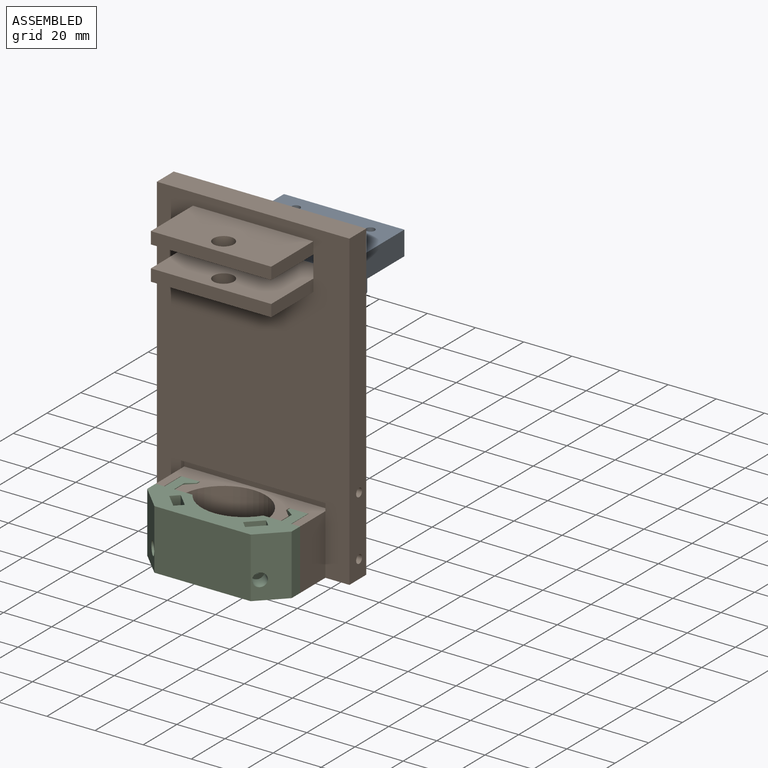
[diagram: assembled view]
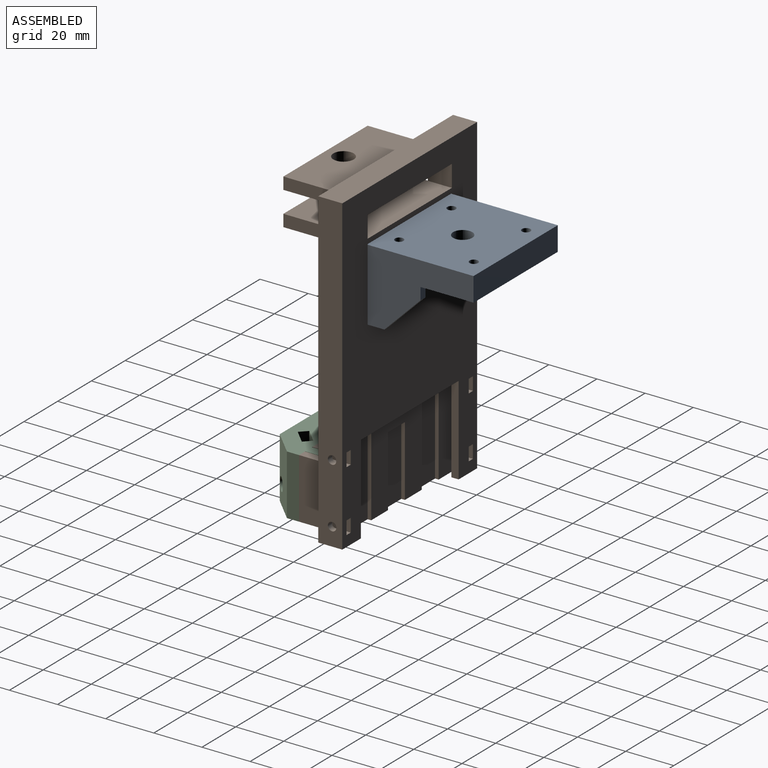
[diagram: assembled view, second angle]
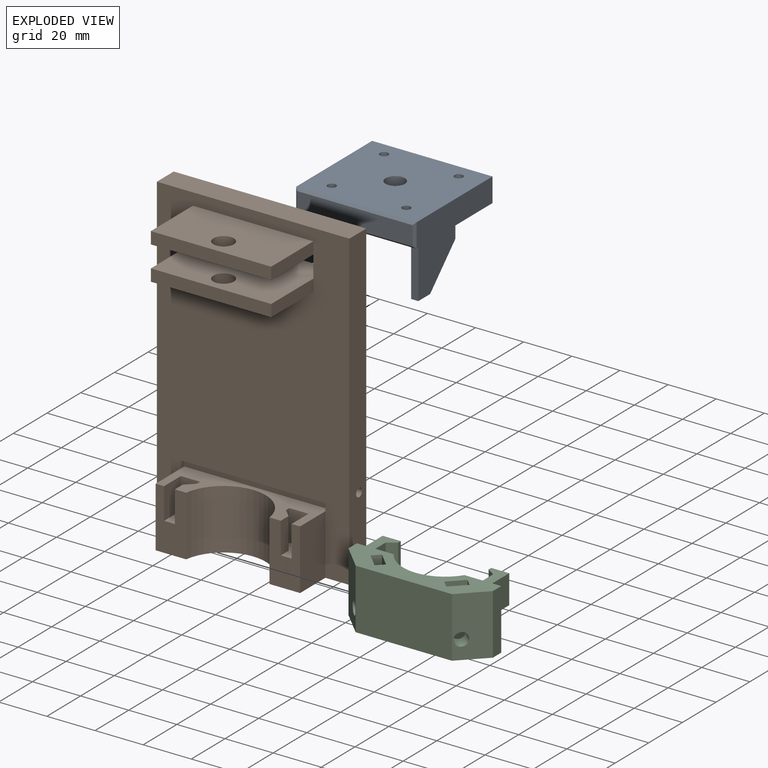
[diagram: exploded view]
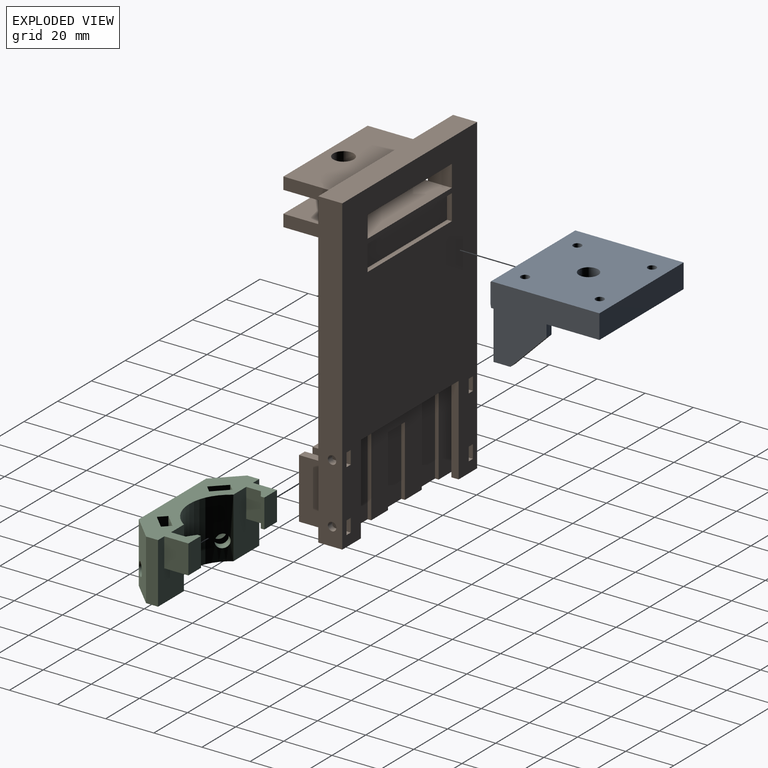
[diagram: exploded view, second angle]
ASSEMBLY  parts=3 mates=2
PART A: 27 faces, bbox 50x46x30 mm
  f0: plane 50x45mm, normal (0,0,1), area 2161.3mm2, adj f2,f4,f5,f6,f7,f8,f9,f10
  f1: plane 50x45mm, normal (0,0,-1), area 1664mm2, adj f2,f4,f5,f7,f8,f9,f10,f11
  f2: plane 45x30mm, normal (-1,0,0), area 777.5mm2, adj f0,f1,f5,f11,f13,f14,f19,f24
  f3: plane 48x8mm, normal (0,-1,0), area 384mm2, adj f23,f24,f25,f26
  f4: plane 45x30mm, normal (1,0,0), area 777.5mm2, adj f0,f1,f5,f15,f16,f18,f20,f25
  f5: plane 50x10mm, normal (0,1,0), area 500mm2, adj f0,f1,f2,f4
  f6: cylinder r=4mm len=8mm, axis (0,0,-1), area 175.9mm2, adj f0,f22
  f7: cylinder r=1.75mm len=10mm, axis (0,0,-1), area 110mm2, adj f0,f1
  f8: cylinder r=1.75mm len=10mm, axis (0,0,-1), area 110mm2, adj f0,f1
  f9: cylinder r=1.75mm len=10mm, axis (0,0,-1), area 110mm2, adj f0,f1
  f10: cylinder r=1.75mm len=10mm, axis (0,0,-1), area 110mm2, adj f0,f1
  f11: plane 20x3mm, normal (0,-1,0), area 60mm2, adj f1,f2,f12,f14
  f12: plane 22x20mm, normal (1,0,0), area 327.5mm2, adj f1,f11,f13,f14,f19
  f13: plane 5x3mm, normal (0,1,0), area 15mm2, adj f1,f2,f12,f19
  f14: plane 7x3mm, normal (0,0,-1), area 21mm2, adj f2,f11,f12,f19
  f15: plane 20x3mm, normal (0,-1,0), area 60mm2, adj f1,f4,f17,f18
  f16: plane 5x3mm, normal (0,1,0), area 15mm2, adj f1,f4,f17,f20
  f17: plane 22x20mm, normal (-1,0,0), area 327.5mm2, adj f1,f15,f16,f18,f20
  f18: plane 7x3mm, normal (0,0,-1), area 21mm2, adj f4,f15,f17,f20
  f19: plane 15x15mm, normal (0,0.71,-0.71), area 63.6mm2, adj f2,f12,f13,f14
  f20: plane 15x15mm, normal (0,0.71,-0.71), area 63.6mm2, adj f4,f16,f17,f18
  f21: cylinder r=11.5mm len=23mm, axis (0,0,-1), area 216.8mm2, adj f1,f22
  f22: plane 23x23mm, normal (0,0,-1), area 365.2mm2, adj f6,f21
  f23: plane 50x1mm, normal (0,-0.71,-0.71), area 69.3mm2, adj f1,f3,f24,f25
  f24: plane 10x1mm, normal (-0.71,-0.71,0), area 12.7mm2, adj f2,f3,f23,f26
  f25: plane 10x1mm, normal (0.71,-0.71,0), area 12.7mm2, adj f3,f4,f23,f26
  f26: plane 50x1mm, normal (0,-0.71,0.71), area 69.3mm2, adj f0,f3,f24,f25
PART B: 107 faces, bbox 80x35x130 mm
  f0: plane 25x12.68mm, normal (0,-1,0), area 258.5mm2, adj f1,f8,f24,f25,f96,f100,f101
  f1: plane 60x16.98mm, normal (0,0,1), area 509.2mm2, adj f0,f24,f25,f26,f27,f40,f41,f43
  f2: plane 22.6x2.5mm, normal (1,0,0), area 54.7mm2, adj f7,f19,f84,f88
  f3: plane 6.23x2.5mm, normal (1,0,0), area 14.7mm2, adj f7,f8,f19,f84
  f4: plane 22.55x2.5mm, normal (-1,0,0), area 54.6mm2, adj f7,f19,f76,f80
  f5: plane 6.28x2.5mm, normal (-1,0,0), area 14.8mm2, adj f7,f8,f19,f80
  f6: plane 130x80mm, normal (0,1,0), area 7224mm2, adj f8,f9,f10,f11,f12,f13,f14,f15
  f7: plane 68x40mm, normal (0,1,0), area 1729.1mm2, adj f2,f3,f4,f5,f8,f17,f18,f20
  f8: plane 80x25mm, normal (0,0,-1), area 917.1mm2, adj f0,f3,f5,f6,f7,f12,f13,f16
  f9: plane 10x9mm, normal (1,0,0), area 90mm2, adj f6,f10,f15,f16
  f10: plane 50x34.98mm, normal (0,0,-1), area 1692.4mm2, adj f6,f9,f11,f49,f50,f51,f52
  f11: plane 10x9mm, normal (-1,0,0), area 90mm2, adj f6,f10,f15,f16
  f12: plane 130x10mm, normal (-1,0,0), area 1280.8mm2, adj f6,f8,f14,f16,f82,f86
  f13: plane 130x10mm, normal (1,0,0), area 1280.8mm2, adj f6,f8,f14,f16,f74,f78
  f14: plane 80x10mm, normal (0,0,1), area 800mm2, adj f6,f12,f13,f16
  f15: plane 50x34.98mm, normal (0,0,1), area 1692.4mm2, adj f6,f9,f11,f44,f45,f46,f47
  f16: plane 130x80mm, normal (0,-1,0), area 7770mm2, adj f8,f9,f11,f12,f13,f14,f24,f26
  f17: plane 6.28x2.5mm, normal (-1,0,0), area 14.8mm2, adj f7,f19,f20,f76
  f18: plane 6.27x2.5mm, normal (1,0,0), area 14.8mm2, adj f7,f19,f20,f88
  f19: plane 68x40mm, normal (0,-1,0), area 554.9mm2, adj f2,f3,f4,f5,f8,f17,f18,f20
  f20: plane 68x2.5mm, normal (0,0,-1), area 170mm2, adj f7,f17,f18,f19
  f21: plane 37x3mm, normal (-1,0,0), area 111mm2, adj f6,f8,f19,f22
  f22: plane 58x3mm, normal (0,0,-1), area 174mm2, adj f6,f19,f21,f23
  f23: plane 37x3mm, normal (1,0,0), area 111mm2, adj f6,f8,f19,f22
  f24: plane 25x15mm, normal (1,0,0), area 375mm2, adj f0,f1,f8,f16
  f25: cylinder r=17.5mm len=34.64mm, axis (0,0,-1), area 1249mm2, adj f0,f1,f8,f27
  f26: plane 25x15mm, normal (-1,0,0), area 375mm2, adj f1,f8,f16,f27
  f27: plane 25x12.68mm, normal (0,-1,0), area 258.5mm2, adj f1,f8,f25,f26,f93,f94,f95
  f28: plane 29.22x1.5mm, normal (-1,0,0), area 43.8mm2, adj f7,f8,f29,f31
  f29: plane 10x1.5mm, normal (0,0,-1), area 15mm2, adj f7,f28,f30,f31
  f30: plane 29.22x1.5mm, normal (1,0,0), area 43.8mm2, adj f7,f8,f29,f31
  f31: plane 29.22x10mm, normal (0,1,0), area 292.2mm2, adj f8,f28,f29,f30
  f32: plane 33.98x1.5mm, normal (-1,0,0), area 51mm2, adj f7,f8,f33,f35
  f33: plane 10x1.5mm, normal (0,0,-1), area 15mm2, adj f7,f32,f34,f35
  f34: plane 33.98x1.5mm, normal (1,0,0), area 51mm2, adj f7,f8,f33,f35
  f35: plane 33.98x10mm, normal (0,1,0), area 339.8mm2, adj f8,f32,f33,f34
  f36: plane 33.98x1.5mm, normal (-1,0,0), area 51mm2, adj f7,f8,f37,f39
  f37: plane 10x1.5mm, normal (0,0,-1), area 15mm2, adj f7,f36,f38,f39
  f38: plane 33.98x1.5mm, normal (1,0,0), area 51mm2, adj f7,f8,f37,f39
  f39: plane 33.98x10mm, normal (0,1,0), area 339.8mm2, adj f8,f36,f37,f38
  f40: plane 3x1.98mm, normal (1,0,0), area 5.9mm2, adj f1,f16,f42,f43
  f41: plane 3x1.98mm, normal (-1,0,0), area 5.9mm2, adj f1,f16,f42,f43
  f42: plane 60x1.98mm, normal (0,0,-1), area 118.8mm2, adj f16,f40,f41,f43
  f43: plane 60x3mm, normal (0,-1,0), area 180mm2, adj f1,f40,f41,f42
  f44: plane 24.98x5mm, normal (-1,0,0), area 124.9mm2, adj f15,f16,f45,f48
  f45: plane 50x5mm, normal (0,-1,0), area 250mm2, adj f15,f44,f46,f48
  f46: plane 24.98x5mm, normal (1,0,0), area 124.9mm2, adj f15,f16,f45,f48
  f47: cylinder r=4.25mm len=8.5mm, axis (0,0,1), area 133.5mm2, adj f15,f48
  f48: plane 50x24.98mm, normal (0,0,-1), area 1192.4mm2, adj f16,f44,f45,f46,f47
  f49: plane 24.98x5mm, normal (-1,0,0), area 124.9mm2, adj f10,f16,f50,f53
  f50: plane 50x5mm, normal (0,-1,0), area 250mm2, adj f10,f49,f51,f53
  f51: plane 24.98x5mm, normal (1,0,0), area 124.9mm2, adj f10,f16,f50,f53
  f52: cylinder r=4.25mm len=8.5mm, axis (0,0,1), area 133.5mm2, adj f10,f53
  f53: plane 50x24.98mm, normal (0,0,1), area 1192.4mm2, adj f16,f49,f50,f51,f52
  f54: plane 8x5.5mm, normal (1,0,0), area 34.4mm2, adj f6,f55,f57,f58,f80
  f55: plane 8x2.5mm, normal (0,0,1), area 20mm2, adj f6,f54,f56,f58
  f56: plane 8x5.5mm, normal (-1,0,0), area 34.4mm2, adj f6,f55,f57,f58,f78
  f57: plane 8x2.5mm, normal (0,0,-1), area 20mm2, adj f6,f54,f56,f58
  f58: plane 5.5x2.5mm, normal (0,1,0), area 13.8mm2, adj f54,f55,f56,f57
  f59: plane 8x2.5mm, normal (0,0,1), area 20mm2, adj f6,f60,f62,f63
  f60: plane 8x5.5mm, normal (-1,0,0), area 34.4mm2, adj f6,f59,f61,f63,f88
  f61: plane 8x2.5mm, normal (0,0,-1), area 20mm2, adj f6,f60,f62,f63
  f62: plane 8x5.5mm, normal (1,0,0), area 34.4mm2, adj f6,f59,f61,f63,f86
  f63: plane 5.5x2.5mm, normal (0,1,0), area 13.7mm2, adj f59,f60,f61,f62
  f64: plane 8x5.5mm, normal (-1,0,0), area 34.4mm2, adj f6,f65,f67,f68,f84
  f65: plane 8x2.5mm, normal (0,0,-1), area 20mm2, adj f6,f64,f66,f68
  f66: plane 8x5.5mm, normal (1,0,0), area 34.4mm2, adj f6,f65,f67,f68,f82
  f67: plane 8x2.5mm, normal (0,0,1), area 20mm2, adj f6,f64,f66,f68
  f68: plane 5.5x2.5mm, normal (0,1,0), area 13.7mm2, adj f64,f65,f66,f67
  f69: plane 8x2.5mm, normal (0,0,-1), area 20mm2, adj f6,f70,f72,f73
  f70: plane 8x5.5mm, normal (1,0,0), area 34.4mm2, adj f6,f69,f71,f73,f76
  f71: plane 8x2.5mm, normal (0,0,1), area 20mm2, adj f6,f70,f72,f73
  f72: plane 8x5.5mm, normal (-1,0,0), area 34.4mm2, adj f6,f69,f71,f73,f74
  f73: plane 5.5x2.5mm, normal (0,1,0), area 13.8mm2, adj f69,f70,f71,f72
  f74: cylinder r=1.75mm len=3.5mm, axis (1,0,0), area 27.5mm2, adj f13,f72
  f75: plane 2.45x0.5mm, normal (1,0,0), area 0.8mm2, adj f19,f76
  f76: cylinder r=1.75mm len=4.7mm, axis (1,0,0), area 31.1mm2, adj f4,f7,f17,f19,f70,f75,f77
  f77: plane 2.45x0.5mm, normal (1,0,0), area 0.8mm2, adj f7,f76
  f78: cylinder r=1.75mm len=3.5mm, axis (1,0,0), area 27.5mm2, adj f13,f56
  f79: plane 2.45x0.5mm, normal (1,0,0), area 0.8mm2, adj f19,f80
  f80: cylinder r=1.75mm len=4.7mm, axis (1,0,0), area 31.1mm2, adj f4,f5,f7,f19,f54,f79,f81
  f81: plane 2.45x0.5mm, normal (1,0,0), area 0.8mm2, adj f7,f80
  f82: cylinder r=1.75mm len=3.5mm, axis (-1,0,0), area 27.5mm2, adj f12,f66
  f83: plane 2.45x0.5mm, normal (-1,0,0), area 0.8mm2, adj f19,f84
  f84: cylinder r=1.75mm len=3.5mm, axis (-1,0,0), area 12.1mm2, adj f2,f3,f7,f19,f64,f83,f85
  f85: plane 2.45x0.5mm, normal (-1,0,0), area 0.8mm2, adj f7,f84
  f86: cylinder r=1.75mm len=3.5mm, axis (-1,0,0), area 27.5mm2, adj f12,f62
  f87: plane 2.45x0.5mm, normal (-1,0,0), area 0.8mm2, adj f19,f88
  f88: cylinder r=1.75mm len=3.5mm, axis (-1,0,0), area 12.1mm2, adj f2,f7,f18,f19,f60,f87,f89
  f89: plane 2.45x0.5mm, normal (-1,0,0), area 0.8mm2, adj f7,f88
  f90: plane 13x3.5mm, normal (-0.69,0.72,0), area 62.9mm2, adj f1,f91,f94,f95
  f91: plane 13x2mm, normal (-1,0,0), area 26mm2, adj f1,f90,f92,f95
  f92: plane 13x8mm, normal (0,-1,0), area 104mm2, adj f1,f91,f93,f95
  f93: plane 13x10mm, normal (1,0,0), area 130mm2, adj f1,f27,f92,f95
  f94: plane 13x4.66mm, normal (-1,0,0), area 60.5mm2, adj f1,f27,f90,f95
  f95: plane 10x8mm, normal (0,0,1), area 57.9mm2, adj f27,f90,f91,f92,f93,f94
  f96: plane 13x10mm, normal (-1,0,0), area 130mm2, adj f0,f1,f97,f101
  f97: plane 13x8mm, normal (0,-1,0), area 104mm2, adj f1,f96,f98,f101
  f98: plane 13x2mm, normal (1,0,0), area 26mm2, adj f1,f97,f99,f101
  f99: plane 13x3.5mm, normal (0.69,0.72,0), area 62.9mm2, adj f1,f98,f100,f101
  f100: plane 13x4.66mm, normal (1,0,0), area 60.5mm2, adj f0,f1,f99,f101
  f101: plane 10x8mm, normal (0,0,1), area 57.9mm2, adj f0,f96,f97,f98,f99,f100
  f102: plane 10.5x2mm, normal (-1,0,0), area 21mm2, adj f6,f103,f105,f106
  f103: plane 50x2mm, normal (0,0,-1), area 100mm2, adj f6,f102,f104,f106
  f104: plane 10.5x2mm, normal (1,0,0), area 21mm2, adj f6,f103,f105,f106
  f105: plane 50x2mm, normal (0,0,1), area 100mm2, adj f6,f102,f104,f106
  f106: plane 50x10.5mm, normal (0,1,0), area 525mm2, adj f102,f103,f104,f105
PART C: 34 faces, bbox 60x25x25 mm
  f0: plane 60x15mm, normal (0,0,1), area 570.3mm2, adj f2,f3,f4,f5,f6,f7,f20,f21
  f1: plane 60x25mm, normal (0,0,-1), area 669.2mm2, adj f2,f3,f4,f5,f6,f7,f8,f9
  f2: plane 25x15.3mm, normal (0,1,0), area 334.6mm2, adj f0,f1,f3,f7,f8,f9,f13
  f3: cylinder r=17.5mm len=29.39mm, axis (0,0,-1), area 824.7mm2, adj f0,f1,f2,f4,f31,f33
  f4: plane 25x15.3mm, normal (0,1,0), area 334.6mm2, adj f0,f1,f3,f5,f14,f15,f19
  f5: plane 25x5mm, normal (-1,0,0), area 125mm2, adj f0,f1,f4,f29
  f6: plane 40x25mm, normal (0,-1,0), area 1000mm2, adj f0,f1,f28,f29
  f7: plane 25x5mm, normal (1,0,0), area 125mm2, adj f0,f1,f2,f28
  f8: plane 12x6.09mm, normal (-1,0,0), area 73.1mm2, adj f1,f2,f12,f13
  f9: plane 12x10mm, normal (1,0,0), area 120mm2, adj f1,f2,f10,f13
  f10: plane 12x7.5mm, normal (0,1,0), area 90mm2, adj f1,f9,f11,f13
  f11: plane 12x1.5mm, normal (-1,0,0), area 18mm2, adj f1,f10,f12,f13
  f12: plane 12x3.5mm, normal (-0.57,-0.82,0), area 51mm2, adj f1,f8,f11,f13
  f13: plane 10x7.5mm, normal (0,0,1), area 49.5mm2, adj f2,f8,f9,f10,f11,f12
  f14: plane 12x10mm, normal (-1,0,0), area 120mm2, adj f1,f4,f18,f19
  f15: plane 12x6.09mm, normal (1,0,0), area 73.1mm2, adj f1,f4,f16,f19
  f16: plane 12x3.5mm, normal (0.57,-0.82,0), area 51mm2, adj f1,f15,f17,f19
  f17: plane 12x1.5mm, normal (1,0,0), area 18mm2, adj f1,f16,f18,f19
  f18: plane 12x7.5mm, normal (0,1,0), area 90mm2, adj f1,f14,f17,f19
  f19: plane 10x7.5mm, normal (0,0,1), area 49.5mm2, adj f4,f14,f15,f16,f17,f18
  f20: plane 25x5.66mm, normal (0.71,-0.71,0), area 176.2mm2, adj f0,f1,f21,f23,f33
  f21: plane 25x2.83mm, normal (0.71,0.71,0), area 100mm2, adj f0,f1,f20,f22
  f22: plane 25x5.66mm, normal (-0.71,0.71,0), area 176.2mm2, adj f0,f1,f21,f23,f32
  f23: plane 25x2.83mm, normal (-0.71,-0.71,0), area 100mm2, adj f0,f1,f20,f22
  f24: plane 25x5.66mm, normal (-0.71,-0.71,0), area 176.2mm2, adj f0,f1,f25,f27,f31
  f25: plane 25x2.83mm, normal (0.71,-0.71,0), area 100mm2, adj f0,f1,f24,f26
  f26: plane 25x5.66mm, normal (0.71,0.71,0), area 176.2mm2, adj f0,f1,f25,f27,f30
  f27: plane 25x2.83mm, normal (-0.71,0.71,0), area 100mm2, adj f0,f1,f24,f26
  f28: plane 25x10mm, normal (0.71,-0.71,0), area 329.8mm2, adj f0,f1,f6,f7,f32
  f29: plane 25x10mm, normal (-0.71,-0.71,0), area 329.8mm2, adj f0,f1,f5,f6,f30
  f30: cylinder r=2.75mm len=8.39mm, axis (-0.71,-0.71,0), area 110mm2, adj f26,f29
  f31: cylinder r=2.75mm len=6.59mm, axis (-0.71,-0.71,0), area 64.1mm2, adj f3,f24
  f32: cylinder r=2.75mm len=8.39mm, axis (0.71,-0.71,0), area 110mm2, adj f22,f28
  f33: cylinder r=2.75mm len=6.59mm, axis (0.71,-0.71,0), area 64.1mm2, adj f3,f20
PLACE A t=(1.9,29.1,0)mm
PLACE B t=(-13.1,31.1,-98.75)mm
PLACE C rot(axis=(0,1,0),180deg) t=(26.9,-8.9,-73.75)mm
MATE fastened B.f106 <-> A.f3  axis (0,1,0) through (26.9,29.1,5)mm
MATE fastened B.f0 <-> C.f4  axis (0,-1,0) through (56.9,6.1,-98.75)mm
